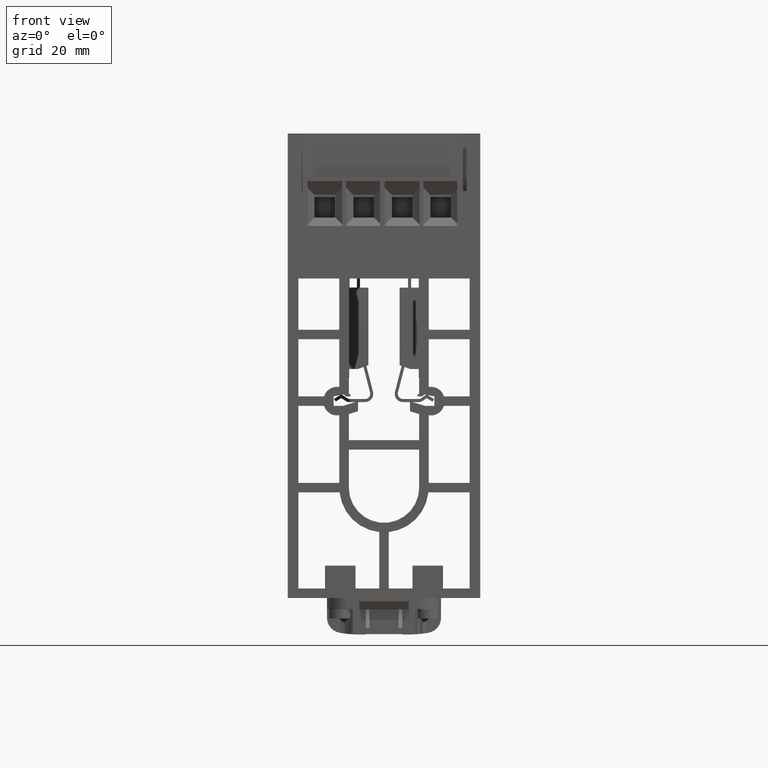
[diagram: clean part render]
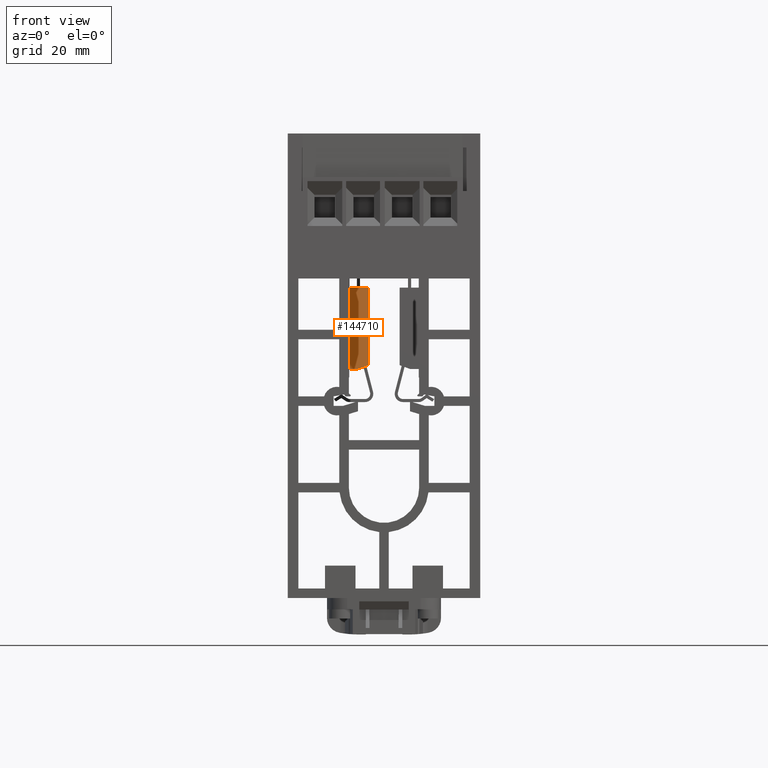
[diagram: same view with one face highlighted and labeled with its STEP entity id]
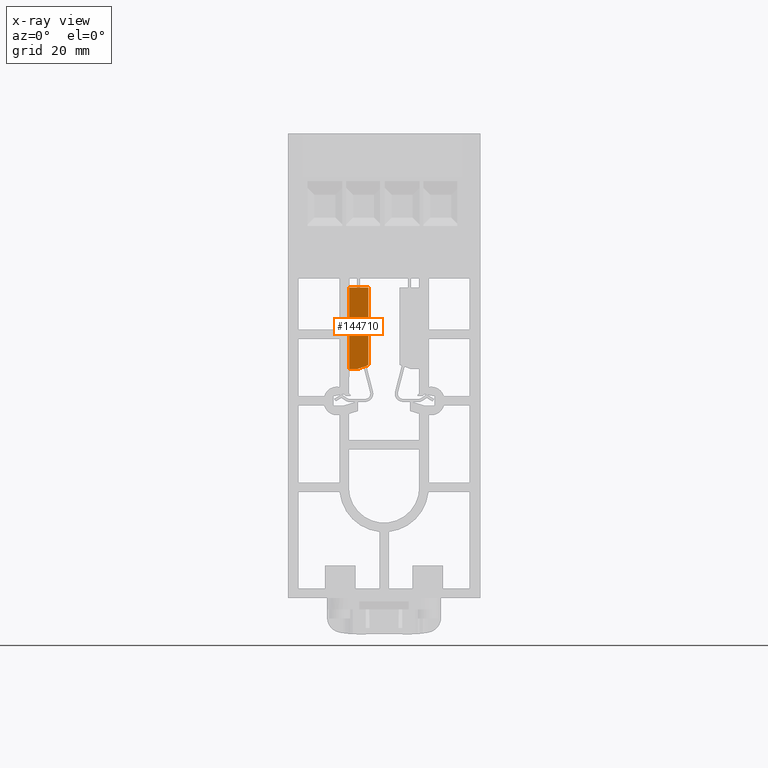
[diagram: x-ray of the same camera — body ghosted, the highlighted face saturated]
A machine part, front view. The second image highlights one B-rep face of the part: STEP entity #144710.
The next image is the same camera in x-ray: the body ghosted, the highlighted face saturated — about 0% of this face is hidden behind the body in this view.
In plain terms, the highlighted planar face has unit normal (0, -1, 0).
Its self-contained STEP definition (entity closure, byte-faithful):
#142150=CARTESIAN_POINT('',(-3.82,83.2000000000001,-64.8));
#142160=VERTEX_POINT('',#142150);
#142330=CARTESIAN_POINT('',(-6.5674774194546,82.2,-64.8));
#142340=VERTEX_POINT('',#142330);
#142370=CARTESIAN_POINT('',(0.,84.5903662948972,-64.8));
#142380=DIRECTION('',(-0.939692620785896,-0.342020143325702,0.));
#142390=VECTOR('',#142380,1.);
#142400=LINE('',#142370,#142390);
#142410=EDGE_CURVE('',#142160,#142340,#142400,.T.);
#142960=CARTESIAN_POINT('',(-8.823,82.2,-64.8));
#142970=VERTEX_POINT('',#142960);
#143000=CARTESIAN_POINT('',(0.,82.2,-64.8));
#143010=DIRECTION('',(1.,0.,0.));
#143020=VECTOR('',#143010,1.);
#143030=LINE('',#143000,#143020);
#143040=EDGE_CURVE('',#142970,#142340,#143030,.T.);
#143250=CARTESIAN_POINT('',(-3.82,103.6,-64.8));
#143260=VERTEX_POINT('',#143250);
#143380=CARTESIAN_POINT('',(-3.82,0.,-64.8));
#143390=DIRECTION('',(0.,1.,0.));
#143400=VECTOR('',#143390,1.);
#143410=LINE('',#143380,#143400);
#143420=EDGE_CURVE('',#142160,#143260,#143410,.T.);
#143950=CARTESIAN_POINT('',(-8.823,103.6,-64.8));
#143960=VERTEX_POINT('',#143950);
#144010=CARTESIAN_POINT('',(0.,103.6,-64.8));
#144020=DIRECTION('',(-1.,0.,0.));
#144030=VECTOR('',#144020,1.);
#144040=LINE('',#144010,#144030);
#144050=EDGE_CURVE('',#143260,#143960,#144040,.T.);
#144540=CARTESIAN_POINT('',(-8.966975,81.6461,-64.8));
#144550=DIRECTION('',(0.,0.,1.));
#144560=DIRECTION('',(1.,0.,0.));
#144570=AXIS2_PLACEMENT_3D('',#144540,#144550,#144560);
#144580=PLANE('',#144570);
#144590=CARTESIAN_POINT('',(-8.823,0.,-64.8));
#144600=DIRECTION('',(0.,-1.,0.));
#144610=VECTOR('',#144600,1.);
#144620=LINE('',#144590,#144610);
#144630=EDGE_CURVE('',#143960,#142970,#144620,.T.);
#144640=ORIENTED_EDGE('',*,*,#144630,.T.);
#144650=ORIENTED_EDGE('',*,*,#144050,.T.);
#144660=ORIENTED_EDGE('',*,*,#143420,.T.);
#144670=ORIENTED_EDGE('',*,*,#142410,.F.);
#144680=ORIENTED_EDGE('',*,*,#143040,.T.);
#144690=EDGE_LOOP('',(#144680,#144670,#144660,#144650,#144640));
#144700=FACE_OUTER_BOUND('',#144690,.T.);
#144710=ADVANCED_FACE('',(#144700),#144580,.T.);